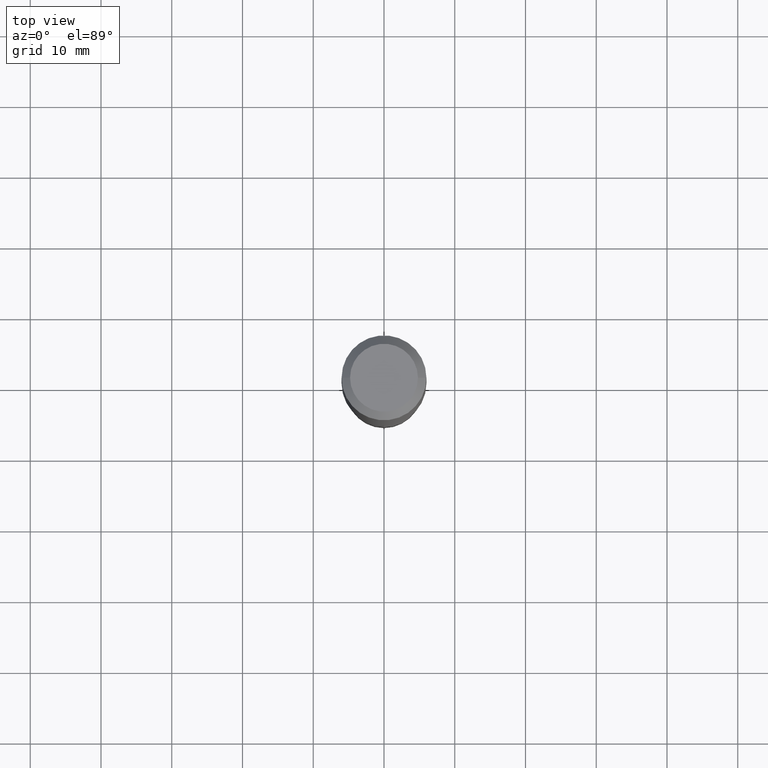
[diagram: clean part render]
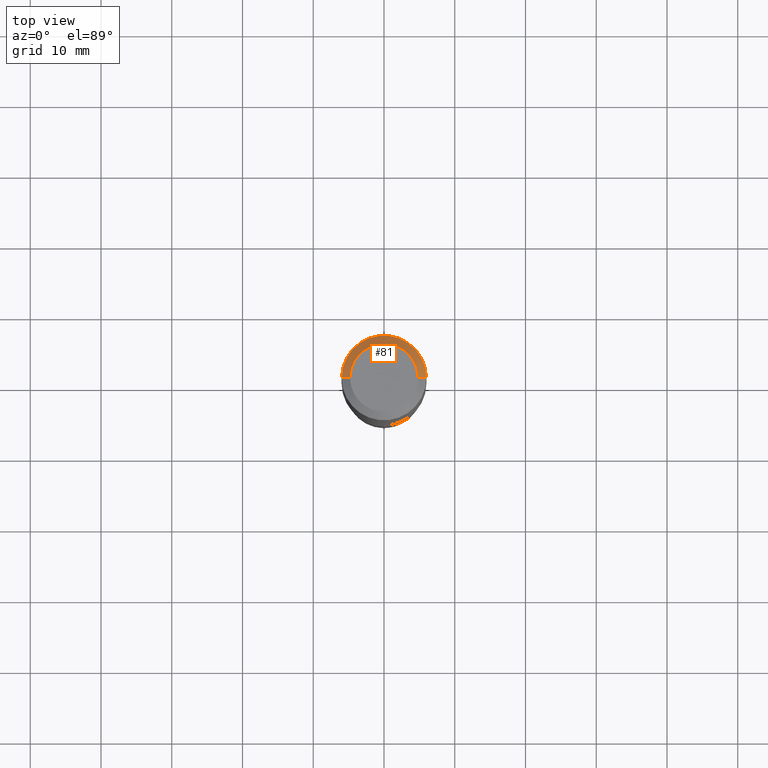
[diagram: same view with one face highlighted and labeled with its STEP entity id]
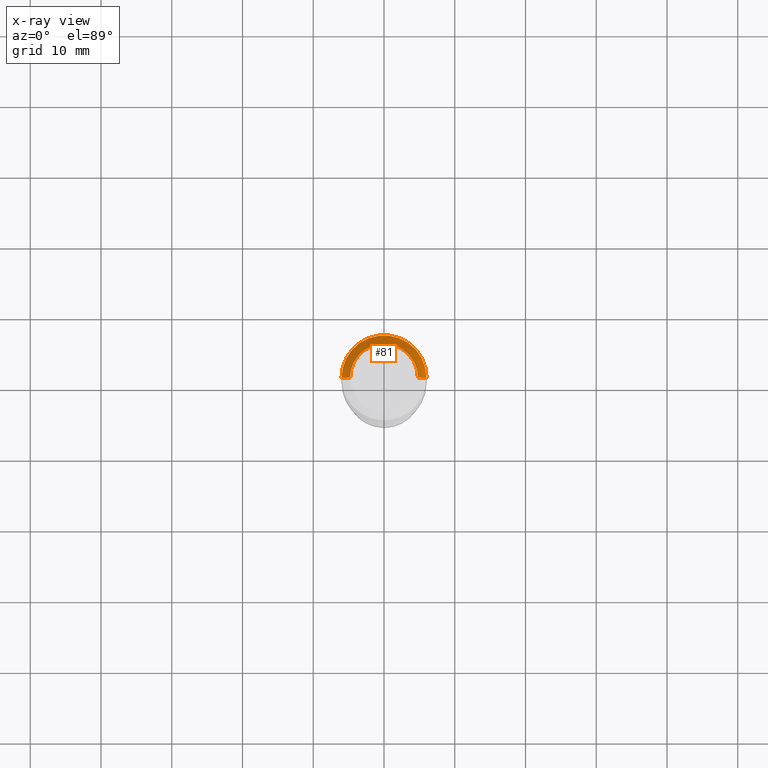
[diagram: x-ray of the same camera — body ghosted, the highlighted face saturated]
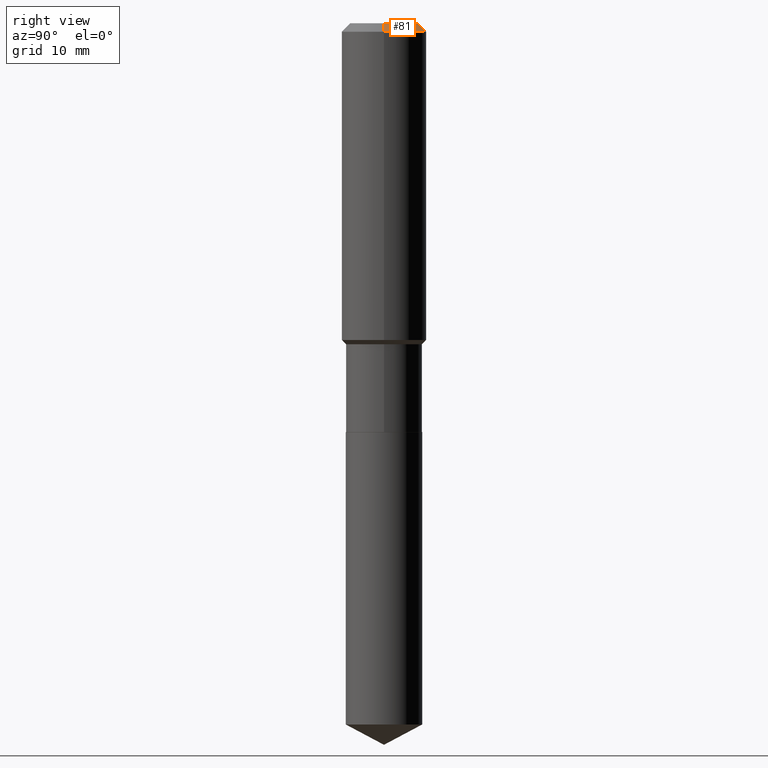
[diagram: same view with one face highlighted and labeled with its STEP entity id]
A machine part, top view. The second image highlights one B-rep face of the part: STEP entity #81.
The next image is the same camera in x-ray: the body ghosted, the highlighted face saturated — about 0% of this face is hidden behind the body in this view.
A second angle (right view) of the same face is appended — the face is thin or edge-on in the first view.
In plain terms, the highlighted conical surface has half-angle 45 deg.
Its self-contained STEP definition (entity closure, byte-faithful):
#4 = DIRECTION ( 'NONE',  ( 1.000000000000000000, -6.982962677686266711E-15, 0.000000000000000000 ) ) ;
#16 = AXIS2_PLACEMENT_3D ( 'NONE', #426, #127, #4 ) ;
#20 = EDGE_CURVE ( 'NONE', #97, #92, #176, .T. ) ;
#62 = VECTOR ( 'NONE', #466, 39.37007874015748143 ) ;
#76 = DIRECTION ( 'NONE',  ( -2.445468806185136597E-29, 3.491481338843145583E-15, 1.000000000000000000 ) ) ;
#81 = ADVANCED_FACE ( 'NONE', ( #202 ), #425, .T. ) ;
#87 = CARTESIAN_POINT ( 'NONE',  ( -0.1889600000000000168, 1.401969416799070942E-15, 3.855188123706346622E-18 ) ) ;
#92 = VERTEX_POINT ( 'NONE', #170 ) ;
#97 = VERTEX_POINT ( 'NONE', #390 ) ;
#120 = CARTESIAN_POINT ( 'NONE',  ( -9.427742298522546243E-47, 1.346031739168365344E-32, 3.855188123715862256E-18 ) ) ;
#127 = DIRECTION ( 'NONE',  ( -2.445468806185136597E-29, 3.491481338843145583E-15, 1.000000000000000000 ) ) ;
#130 = EDGE_CURVE ( 'NONE', #370, #279, #287, .T. ) ;
#170 = CARTESIAN_POINT ( 'NONE',  ( -0.2361999999999999933, -1.481733073481408203E-15, -0.04724000000000028177 ) ) ;
#172 = AXIS2_PLACEMENT_3D ( 'NONE', #274, #384, #278 ) ;
#176 = CIRCLE ( 'NONE', #16, 0.2361999999999999933 ) ;
#189 = DIRECTION ( 'NONE',  ( -0.7071067811865453523, 2.468850131082234184E-15, -0.7071067811865496822 ) ) ;
#202 = FACE_OUTER_BOUND ( 'NONE', #301, .T. ) ;
#218 = VECTOR ( 'NONE', #189, 39.37007874015748143 ) ;
#231 = LINE ( 'NONE', #449, #218 ) ;
#258 = ORIENTED_EDGE ( 'NONE', *, *, #20, .T. ) ;
#274 = CARTESIAN_POINT ( 'NONE',  ( 1.155239464041865506E-30, -1.649375784469511859E-16, -0.04724000000000028177 ) ) ;
#278 = DIRECTION ( 'NONE',  ( -1.000000000000000000, 6.982962677686266711E-15, 0.000000000000000000 ) ) ;
#279 = VERTEX_POINT ( 'NONE', #87 ) ;
#283 = LINE ( 'NONE', #395, #62 ) ;
#287 = CIRCLE ( 'NONE', #308, 0.1889600000000000168 ) ;
#301 = EDGE_LOOP ( 'NONE', ( #482, #313, #258, #400 ) ) ;
#308 = AXIS2_PLACEMENT_3D ( 'NONE', #120, #76, #417 ) ;
#313 = ORIENTED_EDGE ( 'NONE', *, *, #484, .T. ) ;
#326 = CARTESIAN_POINT ( 'NONE',  ( 0.1889600000000000168, -1.540873453589747738E-15, 3.855188123725863225E-18 ) ) ;
#370 = VERTEX_POINT ( 'NONE', #326 ) ;
#384 = DIRECTION ( 'NONE',  ( 2.445468806185136597E-29, -3.491481338843145583E-15, -1.000000000000000000 ) ) ;
#390 = CARTESIAN_POINT ( 'NONE',  ( 0.2361999999999999933, -1.814313362916447440E-15, -0.04724000000000028177 ) ) ;
#395 = CARTESIAN_POINT ( 'NONE',  ( 0.2361999999999999933, -1.785387205520586782E-15, -0.04724000000000028177 ) ) ;
#400 = ORIENTED_EDGE ( 'NONE', *, *, #416, .F. ) ;
#416 = EDGE_CURVE ( 'NONE', #279, #92, #231, .T. ) ;
#417 = DIRECTION ( 'NONE',  ( 1.000000000000000000, -6.982962677686266711E-15, 4.876185090822587894E-29 ) ) ;
#425 = CONICAL_SURFACE ( 'NONE', #172, 0.2361999999999999933, 0.7853981633974452814 ) ;
#426 = CARTESIAN_POINT ( 'NONE',  ( 1.155239464041865506E-30, -1.649375784469511859E-16, -0.04724000000000028177 ) ) ;
#449 = CARTESIAN_POINT ( 'NONE',  ( -0.2361999999999999933, 1.484438206022545019E-15, -0.04724000000000028177 ) ) ;
#466 = DIRECTION ( 'NONE',  ( 0.7071067811865453523, -7.319954787623248157E-15, -0.7071067811865496822 ) ) ;
#482 = ORIENTED_EDGE ( 'NONE', *, *, #130, .F. ) ;
#484 = EDGE_CURVE ( 'NONE', #370, #97, #283, .T. ) ;